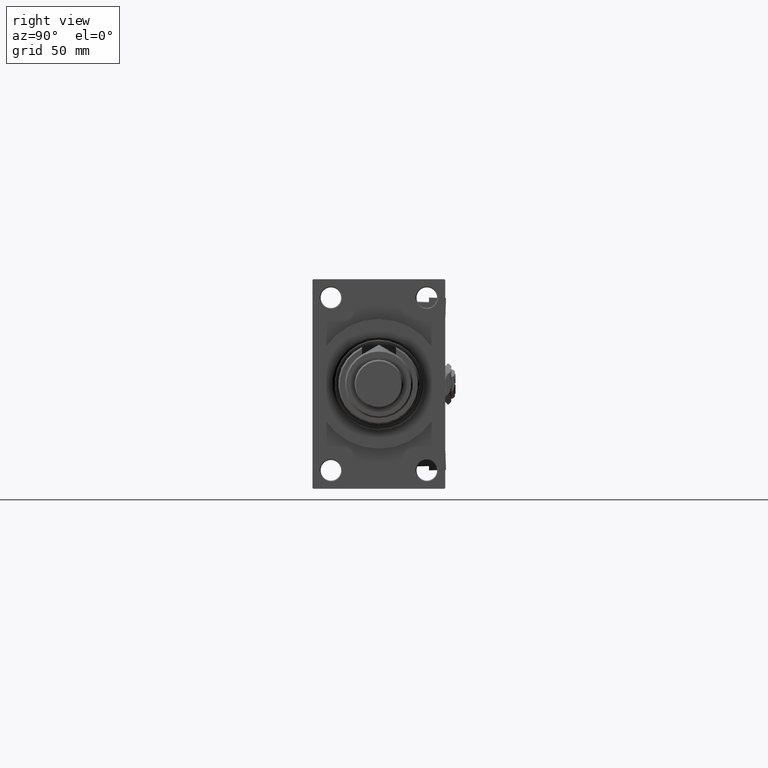
[diagram: clean part render]
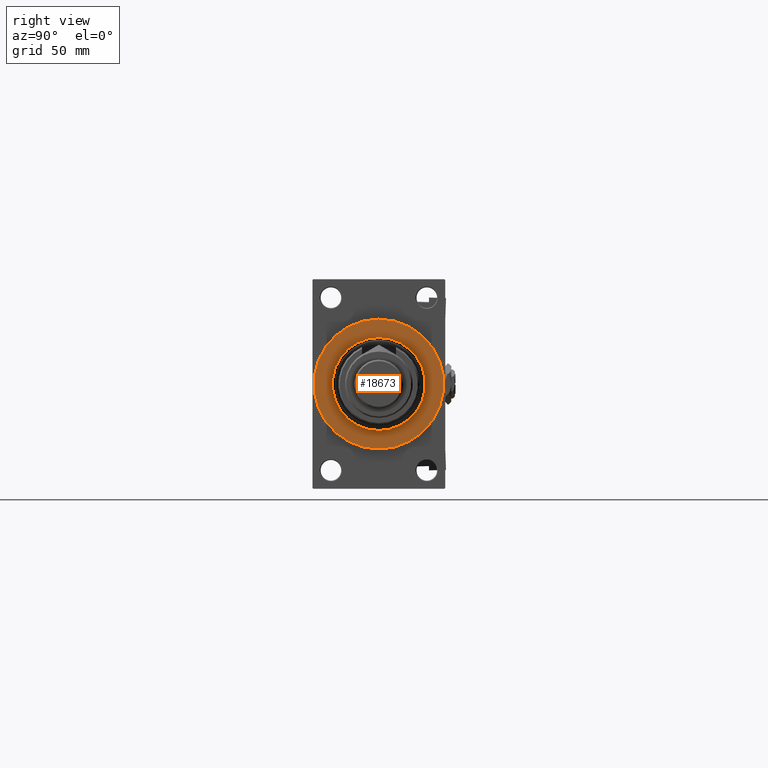
[diagram: same view with one face highlighted and labeled with its STEP entity id]
A machine part, right view. The second image highlights one B-rep face of the part: STEP entity #18673.
In plain terms, the highlighted planar face has unit normal (1, 0, 0).
Its self-contained STEP definition (entity closure, byte-faithful):
#885 = ORIENTED_EDGE ( 'NONE', *, *, #10375, .T. ) ;
#1111 = CARTESIAN_POINT ( 'NONE',  ( 296.0000000000000568, 0.000000000000000000, -31.50000000000000000 ) ) ;
#1329 = CARTESIAN_POINT ( 'NONE',  ( 296.0000000000000568, 0.000000000000000000, 0.000000000000000000 ) ) ;
#1631 = AXIS2_PLACEMENT_3D ( 'NONE', #1329, #43385, #6524 ) ;
#2905 = VERTEX_POINT ( 'NONE', #37762 ) ;
#5917 = DIRECTION ( 'NONE',  ( 0.000000000000000000, 0.000000000000000000, -1.000000000000000000 ) ) ;
#6258 = CARTESIAN_POINT ( 'NONE',  ( 296.0000000000000568, 0.000000000000000000, 44.00000000000000000 ) ) ;
#6524 = DIRECTION ( 'NONE',  ( 0.000000000000000000, 0.000000000000000000, -1.000000000000000000 ) ) ;
#7043 = EDGE_LOOP ( 'NONE', ( #31894, #885 ) ) ;
#8206 = CIRCLE ( 'NONE', #29312, 31.50000000000000000 ) ;
#10375 = EDGE_CURVE ( 'NONE', #2905, #38269, #46417, .T. ) ;
#10584 = FACE_OUTER_BOUND ( 'NONE', #25506, .T. ) ;
#10729 = AXIS2_PLACEMENT_3D ( 'NONE', #51301, #27305, #51580 ) ;
#12189 = ORIENTED_EDGE ( 'NONE', *, *, #40552, .T. ) ;
#12482 = CIRCLE ( 'NONE', #10729, 44.00000000000000000 ) ;
#14434 = PLANE ( 'NONE',  #16599 ) ;
#16599 = AXIS2_PLACEMENT_3D ( 'NONE', #47717, #48273, #5917 ) ;
#18673 = ADVANCED_FACE ( 'NONE', ( #27378, #10584 ), #14434, .T. ) ;
#19187 = DIRECTION ( 'NONE',  ( 0.000000000000000000, 0.000000000000000000, -1.000000000000000000 ) ) ;
#21073 = DIRECTION ( 'NONE',  ( 1.000000000000000000, 0.000000000000000000, 0.000000000000000000 ) ) ;
#23852 = CARTESIAN_POINT ( 'NONE',  ( 296.0000000000000568, 0.000000000000000000, 0.000000000000000000 ) ) ;
#25506 = EDGE_LOOP ( 'NONE', ( #43307, #12189 ) ) ;
#25948 = VERTEX_POINT ( 'NONE', #36382 ) ;
#27305 = DIRECTION ( 'NONE',  ( 1.000000000000000000, 0.000000000000000000, 0.000000000000000000 ) ) ;
#27378 = FACE_BOUND ( 'NONE', #7043, .T. ) ;
#29312 = AXIS2_PLACEMENT_3D ( 'NONE', #23852, #44754, #19187 ) ;
#29336 = DIRECTION ( 'NONE',  ( 0.000000000000000000, 0.000000000000000000, -1.000000000000000000 ) ) ;
#31878 = CIRCLE ( 'NONE', #48549, 44.00000000000000000 ) ;
#31894 = ORIENTED_EDGE ( 'NONE', *, *, #34618, .T. ) ;
#34618 = EDGE_CURVE ( 'NONE', #38269, #2905, #8206, .T. ) ;
#36382 = CARTESIAN_POINT ( 'NONE',  ( 296.0000000000000568, 5.388445916248353619E-15, -44.00000000000000000 ) ) ;
#37762 = CARTESIAN_POINT ( 'NONE',  ( 296.0000000000000568, 3.857637417314162689E-15, 31.50000000000000000 ) ) ;
#38269 = VERTEX_POINT ( 'NONE', #1111 ) ;
#39613 = EDGE_CURVE ( 'NONE', #40282, #25948, #12482, .T. ) ;
#40282 = VERTEX_POINT ( 'NONE', #6258 ) ;
#40552 = EDGE_CURVE ( 'NONE', #25948, #40282, #31878, .T. ) ;
#43307 = ORIENTED_EDGE ( 'NONE', *, *, #39613, .T. ) ;
#43385 = DIRECTION ( 'NONE',  ( -1.000000000000000000, -0.000000000000000000, -0.000000000000000000 ) ) ;
#44754 = DIRECTION ( 'NONE',  ( -1.000000000000000000, -0.000000000000000000, -0.000000000000000000 ) ) ;
#46417 = CIRCLE ( 'NONE', #1631, 31.50000000000000000 ) ;
#47717 = CARTESIAN_POINT ( 'NONE',  ( 296.0000000000000568, 0.000000000000000000, 0.000000000000000000 ) ) ;
#48273 = DIRECTION ( 'NONE',  ( 1.000000000000000000, 0.000000000000000000, 0.000000000000000000 ) ) ;
#48549 = AXIS2_PLACEMENT_3D ( 'NONE', #50494, #21073, #29336 ) ;
#50494 = CARTESIAN_POINT ( 'NONE',  ( 296.0000000000000568, 0.000000000000000000, 0.000000000000000000 ) ) ;
#51301 = CARTESIAN_POINT ( 'NONE',  ( 296.0000000000000568, 0.000000000000000000, 0.000000000000000000 ) ) ;
#51580 = DIRECTION ( 'NONE',  ( 0.000000000000000000, 0.000000000000000000, -1.000000000000000000 ) ) ;